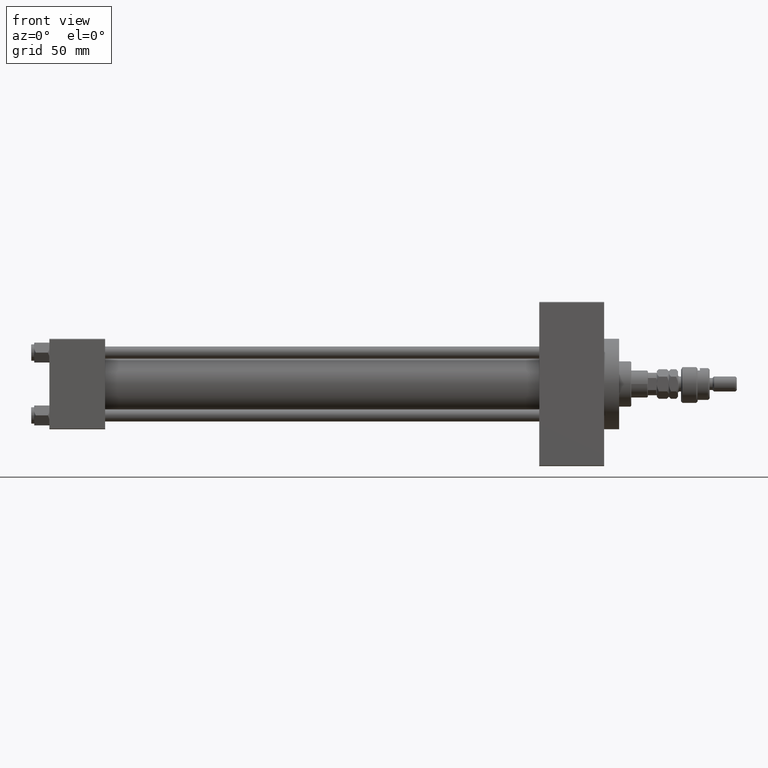
[diagram: clean part render]
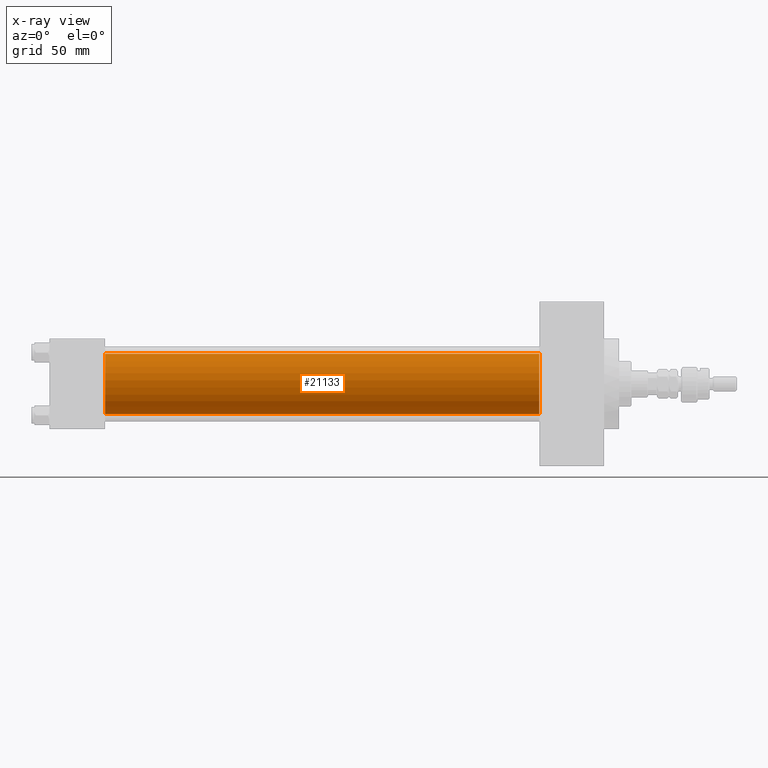
[diagram: x-ray — body ghosted, one internal face saturated and labeled with its STEP entity id]
A machine part, front view, then the same camera in x-ray: the body is ghosted and one INTERNAL B-rep face — a face not visible from any outside direction — is saturated and labeled: STEP entity #21133.
In plain terms, the highlighted cylindrical surface (edge-blend (fillet) strip) has radius 20 mm, axis along (-1, -0, -0).
Its self-contained STEP definition (entity closure, byte-faithful):
#511 = CIRCLE ( 'NONE', #6434, 20.00000000000000000 ) ;
#525 = CARTESIAN_POINT ( 'NONE',  ( 37.00000000000000000, -2.602085213965210642E-15, 20.00000000000000000 ) ) ;
#1465 = ORIENTED_EDGE ( 'NONE', *, *, #2547, .T. ) ;
#2407 = EDGE_LOOP ( 'NONE', ( #49150, #1465, #18904, #46279 ) ) ;
#2531 = EDGE_CURVE ( 'NONE', #24027, #34764, #511, .T. ) ;
#2547 = EDGE_CURVE ( 'NONE', #50199, #34764, #22585, .T. ) ;
#5015 = EDGE_CURVE ( 'NONE', #41793, #24027, #6005, .T. ) ;
#6005 = LINE ( 'NONE', #30738, #51066 ) ;
#6434 = AXIS2_PLACEMENT_3D ( 'NONE', #18633, #10740, #11524 ) ;
#6784 = DIRECTION ( 'NONE',  ( -1.000000000000000000, -0.000000000000000000, -0.000000000000000000 ) ) ;
#7004 = FACE_OUTER_BOUND ( 'NONE', #2407, .T. ) ;
#10740 = DIRECTION ( 'NONE',  ( 1.000000000000000000, 0.000000000000000000, 0.000000000000000000 ) ) ;
#11229 = CARTESIAN_POINT ( 'NONE',  ( 324.9999999999999432, -2.602085213965210642E-15, 0.000000000000000000 ) ) ;
#11524 = DIRECTION ( 'NONE',  ( 0.000000000000000000, 0.000000000000000000, -1.000000000000000000 ) ) ;
#12607 = CARTESIAN_POINT ( 'NONE',  ( 37.00000000000000000, -1.527916156705042519E-16, -20.00000000000000000 ) ) ;
#13334 = CARTESIAN_POINT ( 'NONE',  ( 324.9999999999999432, -1.527916156705042519E-16, -20.00000000000000000 ) ) ;
#17911 = CIRCLE ( 'NONE', #34728, 20.00000000000000000 ) ;
#18633 = CARTESIAN_POINT ( 'NONE',  ( 37.00000000000000000, -2.602085213965210642E-15, 0.000000000000000000 ) ) ;
#18904 = ORIENTED_EDGE ( 'NONE', *, *, #2531, .F. ) ;
#19491 = CARTESIAN_POINT ( 'NONE',  ( 324.9999999999999432, -2.602085213965210642E-15, 0.000000000000000000 ) ) ;
#21133 = ADVANCED_FACE ( 'NONE', ( #7004 ), #50729, .F. ) ;
#22585 = LINE ( 'NONE', #38653, #37529 ) ;
#24027 = VERTEX_POINT ( 'NONE', #525 ) ;
#28181 = DIRECTION ( 'NONE',  ( 0.000000000000000000, 0.000000000000000000, -1.000000000000000000 ) ) ;
#28669 = AXIS2_PLACEMENT_3D ( 'NONE', #11229, #47023, #46773 ) ;
#29290 = EDGE_CURVE ( 'NONE', #41793, #50199, #17911, .T. ) ;
#29606 = CARTESIAN_POINT ( 'NONE',  ( 324.9999999999999432, -2.602085213965210642E-15, 20.00000000000000000 ) ) ;
#30738 = CARTESIAN_POINT ( 'NONE',  ( 324.9999999999999432, -2.602085213965210642E-15, 20.00000000000000000 ) ) ;
#34728 = AXIS2_PLACEMENT_3D ( 'NONE', #19491, #48186, #28181 ) ;
#34764 = VERTEX_POINT ( 'NONE', #12607 ) ;
#34950 = DIRECTION ( 'NONE',  ( -1.000000000000000000, -0.000000000000000000, -0.000000000000000000 ) ) ;
#37529 = VECTOR ( 'NONE', #6784, 1000.000000000000000 ) ;
#38653 = CARTESIAN_POINT ( 'NONE',  ( 324.9999999999999432, -1.527916156705042519E-16, -20.00000000000000000 ) ) ;
#41793 = VERTEX_POINT ( 'NONE', #29606 ) ;
#46279 = ORIENTED_EDGE ( 'NONE', *, *, #5015, .F. ) ;
#46773 = DIRECTION ( 'NONE',  ( 0.000000000000000000, 0.000000000000000000, 1.000000000000000000 ) ) ;
#47023 = DIRECTION ( 'NONE',  ( -1.000000000000000000, -0.000000000000000000, -0.000000000000000000 ) ) ;
#48186 = DIRECTION ( 'NONE',  ( 1.000000000000000000, 0.000000000000000000, 0.000000000000000000 ) ) ;
#49150 = ORIENTED_EDGE ( 'NONE', *, *, #29290, .T. ) ;
#50199 = VERTEX_POINT ( 'NONE', #13334 ) ;
#50729 = CYLINDRICAL_SURFACE ( 'NONE', #28669, 20.00000000000000000 ) ;
#51066 = VECTOR ( 'NONE', #34950, 1000.000000000000000 ) ;